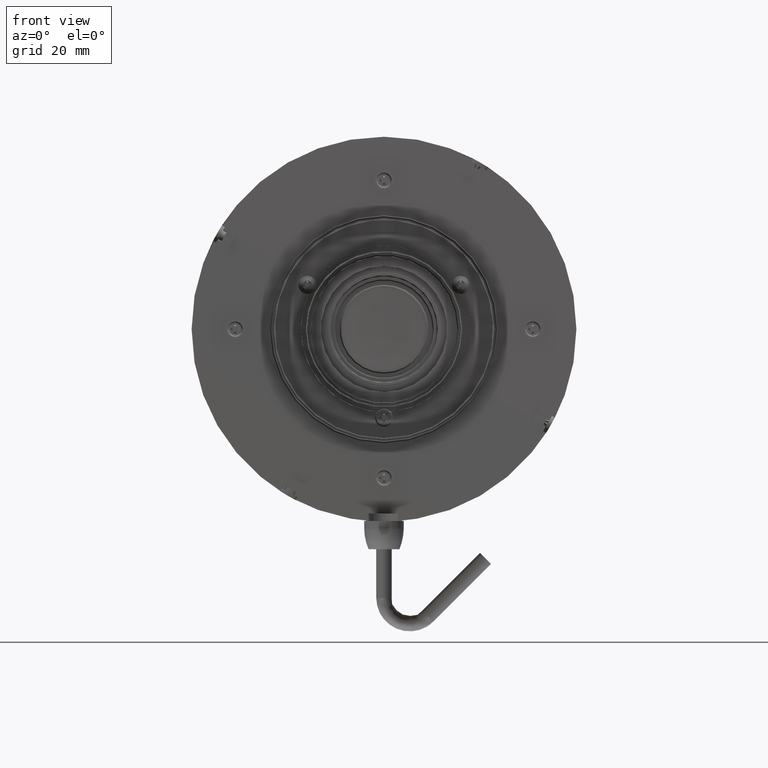
[diagram: clean part render]
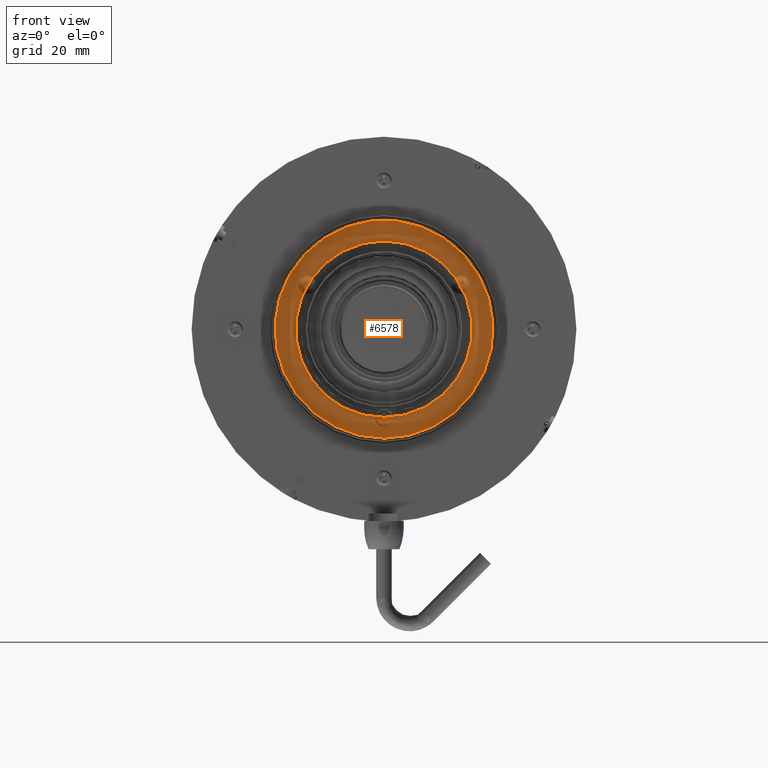
[diagram: same view with one face highlighted and labeled with its STEP entity id]
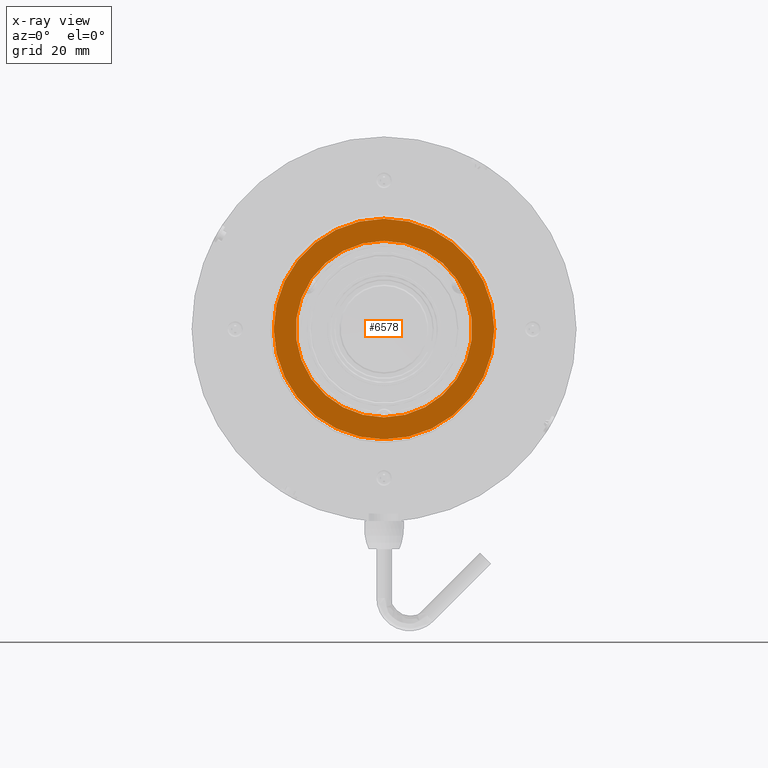
[diagram: x-ray of the same camera — body ghosted, the highlighted face saturated]
A machine part, front view. The second image highlights one B-rep face of the part: STEP entity #6578.
The next image is the same camera in x-ray: the body ghosted, the highlighted face saturated — about 0% of this face is hidden behind the body in this view.
In plain terms, the highlighted planar face has unit normal (0, 1, 0).
Its self-contained STEP definition (entity closure, byte-faithful):
#284 = FACE_OUTER_BOUND ( 'NONE', #2822, .T. ) ;
#846 = DIRECTION ( 'NONE',  ( 0.000000000000000000, 0.000000000000000000, -1.000000000000000000 ) ) ;
#1314 = FACE_BOUND ( 'NONE', #11309, .T. ) ;
#1838 = ORIENTED_EDGE ( 'NONE', *, *, #6841, .T. ) ;
#2032 = ORIENTED_EDGE ( 'NONE', *, *, #6933, .F. ) ;
#2822 = EDGE_LOOP ( 'NONE', ( #1838 ) ) ;
#2838 = CARTESIAN_POINT ( 'NONE',  ( 0.000000000000000000, -79.49969672688550304, -21.50000000000000000 ) ) ;
#2880 = CARTESIAN_POINT ( 'NONE',  ( 0.000000000000000000, -79.49969672688550304, 21.50000000000000000 ) ) ;
#3619 = CARTESIAN_POINT ( 'NONE',  ( 0.000000000000000000, -79.49969672688550304, 0.000000000000000000 ) ) ;
#3692 = DIRECTION ( 'NONE',  ( 0.000000000000000000, 0.000000000000000000, -1.000000000000000000 ) ) ;
#4027 = DIRECTION ( 'NONE',  ( 0.000000000000000000, -0.000000000000000000, 1.000000000000000000 ) ) ;
#4838 = CARTESIAN_POINT ( 'NONE',  ( 0.000000000000000000, -79.49969672688550304, -17.19999999999999929 ) ) ;
#5561 = VERTEX_POINT ( 'NONE', #2838 ) ;
#5620 = DIRECTION ( 'NONE',  ( 0.000000000000000000, -1.000000000000000000, 0.000000000000000000 ) ) ;
#6143 = CIRCLE ( 'NONE', #6901, 17.19999999999999929 ) ;
#6325 = AXIS2_PLACEMENT_3D ( 'NONE', #10277, #7507, #3692 ) ;
#6573 = DIRECTION ( 'NONE',  ( 0.000000000000000000, 1.000000000000000000, 0.000000000000000000 ) ) ;
#6578 = ADVANCED_FACE ( 'NONE', ( #284, #1314 ), #7655, .F. ) ;
#6841 = EDGE_CURVE ( 'NONE', #5561, #5561, #7681, .T. ) ;
#6901 = AXIS2_PLACEMENT_3D ( 'NONE', #3619, #5620, #846 ) ;
#6933 = EDGE_CURVE ( 'NONE', #11061, #11061, #6143, .T. ) ;
#7281 = AXIS2_PLACEMENT_3D ( 'NONE', #2880, #6573, #4027 ) ;
#7507 = DIRECTION ( 'NONE',  ( 0.000000000000000000, -1.000000000000000000, 0.000000000000000000 ) ) ;
#7655 = PLANE ( 'NONE',  #7281 ) ;
#7681 = CIRCLE ( 'NONE', #6325, 21.50000000000000000 ) ;
#10277 = CARTESIAN_POINT ( 'NONE',  ( 0.000000000000000000, -79.49969672688550304, 0.000000000000000000 ) ) ;
#11061 = VERTEX_POINT ( 'NONE', #4838 ) ;
#11309 = EDGE_LOOP ( 'NONE', ( #2032 ) ) ;